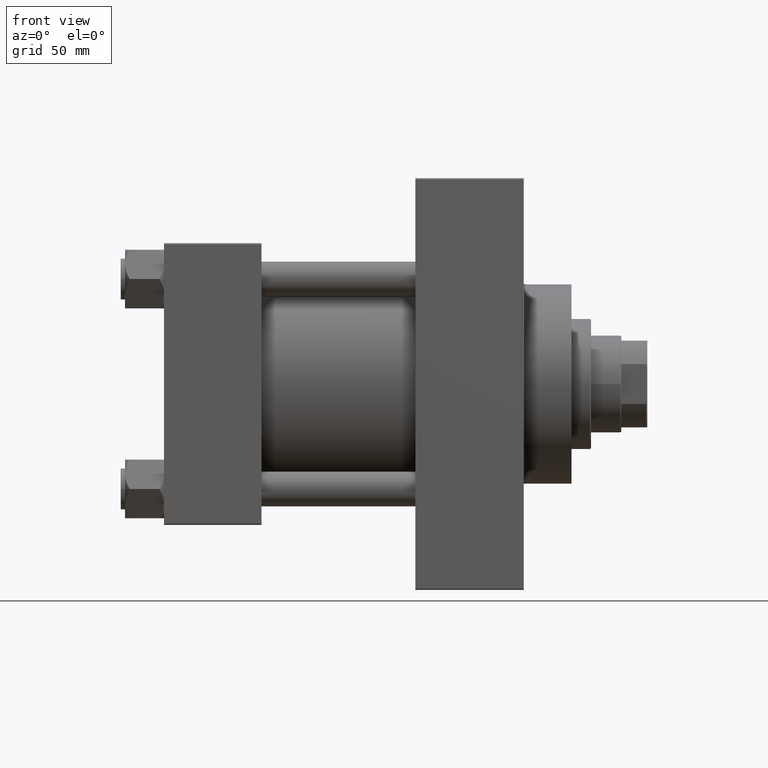
[diagram: clean part render]
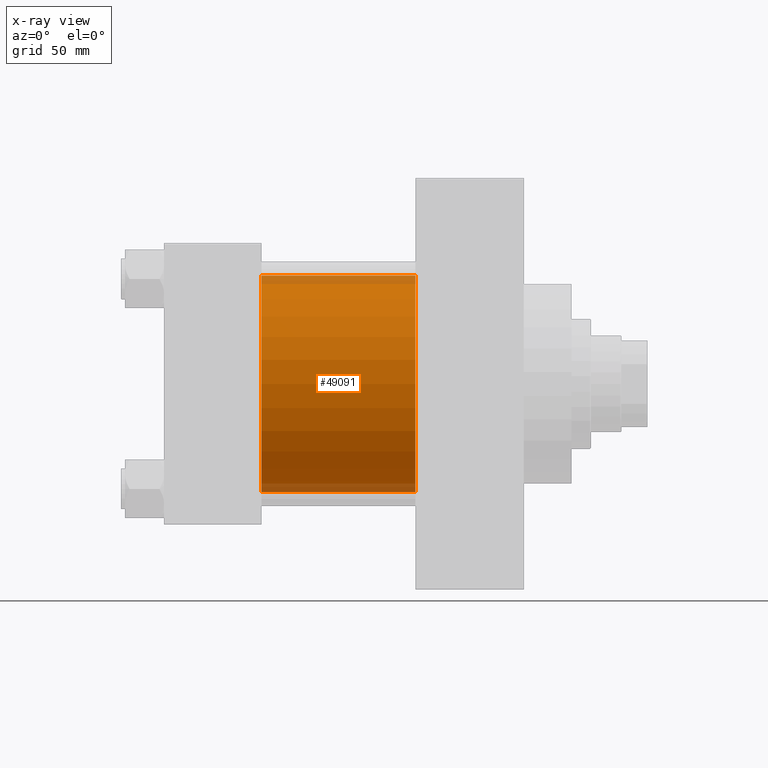
[diagram: x-ray — body ghosted, one internal face saturated and labeled with its STEP entity id]
A machine part, front view, then the same camera in x-ray: the body is ghosted and one INTERNAL B-rep face — a face not visible from any outside direction — is saturated and labeled: STEP entity #49091.
In plain terms, the highlighted cylindrical surface (partial cylindrical patch) has radius 50 mm, axis along (-1, -0, -0).
Its self-contained STEP definition (entity closure, byte-faithful):
#1099 = DIRECTION ( 'NONE',  ( 0.000000000000000000, 0.000000000000000000, -1.000000000000000000 ) ) ;
#2502 = CIRCLE ( 'NONE', #21845, 50.00000000000000000 ) ;
#2600 = LINE ( 'NONE', #45676, #44460 ) ;
#3219 = EDGE_CURVE ( 'NONE', #10661, #32098, #2502, .T. ) ;
#3618 = DIRECTION ( 'NONE',  ( -1.000000000000000000, -0.000000000000000000, -0.000000000000000000 ) ) ;
#3717 = VECTOR ( 'NONE', #39693, 1000.000000000000000 ) ;
#6829 = EDGE_CURVE ( 'NONE', #10661, #23940, #2600, .T. ) ;
#7065 = CARTESIAN_POINT ( 'NONE',  ( 45.00000000000000000, 3.521148781771555838E-15, -50.00000000000000000 ) ) ;
#10661 = VERTEX_POINT ( 'NONE', #28032 ) ;
#10920 = DIRECTION ( 'NONE',  ( 0.000000000000000000, 0.000000000000000000, 1.000000000000000000 ) ) ;
#13010 = CARTESIAN_POINT ( 'NONE',  ( 115.9999999999999858, 3.521148781771555838E-15, -50.00000000000000000 ) ) ;
#16141 = DIRECTION ( 'NONE',  ( 1.000000000000000000, 0.000000000000000000, 0.000000000000000000 ) ) ;
#16295 = ORIENTED_EDGE ( 'NONE', *, *, #6829, .F. ) ;
#16642 = DIRECTION ( 'NONE',  ( 0.000000000000000000, 0.000000000000000000, -1.000000000000000000 ) ) ;
#16757 = CIRCLE ( 'NONE', #23994, 50.00000000000000000 ) ;
#17310 = ORIENTED_EDGE ( 'NONE', *, *, #47700, .T. ) ;
#18988 = FACE_OUTER_BOUND ( 'NONE', #41372, .T. ) ;
#21845 = AXIS2_PLACEMENT_3D ( 'NONE', #46685, #46211, #1099 ) ;
#22455 = EDGE_CURVE ( 'NONE', #23940, #25099, #16757, .T. ) ;
#23940 = VERTEX_POINT ( 'NONE', #44140 ) ;
#23994 = AXIS2_PLACEMENT_3D ( 'NONE', #42833, #16141, #16642 ) ;
#25099 = VERTEX_POINT ( 'NONE', #7065 ) ;
#26541 = DIRECTION ( 'NONE',  ( -1.000000000000000000, -0.000000000000000000, -0.000000000000000000 ) ) ;
#27706 = ORIENTED_EDGE ( 'NONE', *, *, #22455, .F. ) ;
#28032 = CARTESIAN_POINT ( 'NONE',  ( 115.9999999999999858, -2.602085213965210642E-15, 50.00000000000000000 ) ) ;
#30325 = CARTESIAN_POINT ( 'NONE',  ( 115.9999999999999858, -2.602085213965210642E-15, 0.000000000000000000 ) ) ;
#31161 = AXIS2_PLACEMENT_3D ( 'NONE', #30325, #26541, #10920 ) ;
#32098 = VERTEX_POINT ( 'NONE', #42835 ) ;
#32145 = LINE ( 'NONE', #13010, #3717 ) ;
#37607 = CYLINDRICAL_SURFACE ( 'NONE', #31161, 50.00000000000000000 ) ;
#39693 = DIRECTION ( 'NONE',  ( -1.000000000000000000, -0.000000000000000000, -0.000000000000000000 ) ) ;
#41372 = EDGE_LOOP ( 'NONE', ( #47082, #17310, #27706, #16295 ) ) ;
#42833 = CARTESIAN_POINT ( 'NONE',  ( 45.00000000000000000, -2.602085213965210642E-15, 0.000000000000000000 ) ) ;
#42835 = CARTESIAN_POINT ( 'NONE',  ( 115.9999999999999858, 3.521148781771555838E-15, -50.00000000000000000 ) ) ;
#44140 = CARTESIAN_POINT ( 'NONE',  ( 45.00000000000000000, -2.602085213965210642E-15, 50.00000000000000000 ) ) ;
#44460 = VECTOR ( 'NONE', #3618, 1000.000000000000000 ) ;
#45676 = CARTESIAN_POINT ( 'NONE',  ( 115.9999999999999858, -2.602085213965210642E-15, 50.00000000000000000 ) ) ;
#46211 = DIRECTION ( 'NONE',  ( 1.000000000000000000, 0.000000000000000000, 0.000000000000000000 ) ) ;
#46685 = CARTESIAN_POINT ( 'NONE',  ( 115.9999999999999858, -2.602085213965210642E-15, 0.000000000000000000 ) ) ;
#47082 = ORIENTED_EDGE ( 'NONE', *, *, #3219, .T. ) ;
#47700 = EDGE_CURVE ( 'NONE', #32098, #25099, #32145, .T. ) ;
#49091 = ADVANCED_FACE ( 'NONE', ( #18988 ), #37607, .F. ) ;